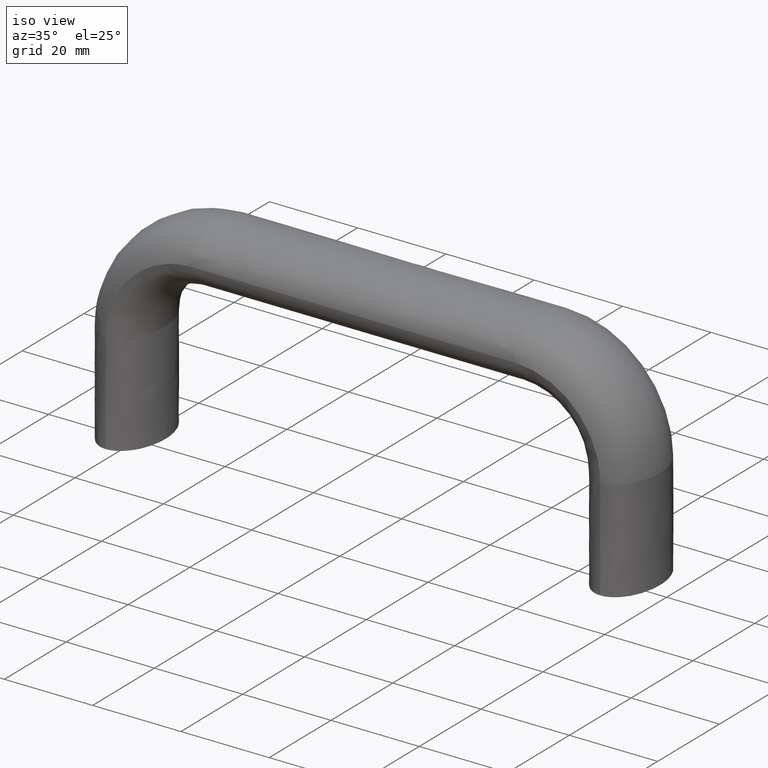
[diagram: clean part render]
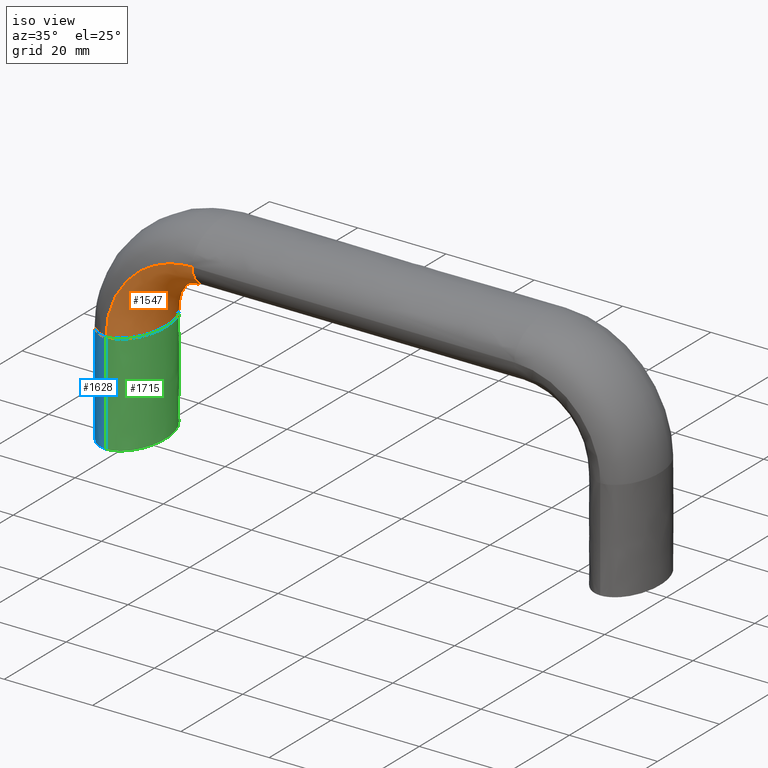
[diagram: same view with three faces highlighted in distinct colors, each labeled with its STEP entity id]
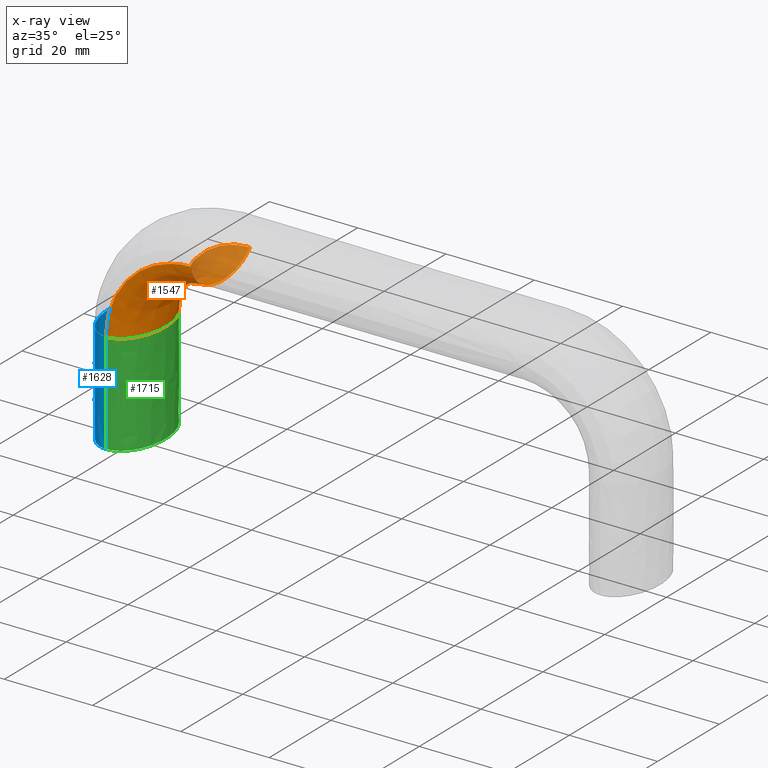
[diagram: x-ray of the same camera — body ghosted, the three highlighted faces saturated]
A machine part, iso view with three faces highlighted in distinct colors.
The next image is the same camera in x-ray (body ghosted, the three faces saturated) — at least one of them is partly hidden behind the body in this view.
Their STEP definitions:

[orange] entity #1547 — the highlighted face is a freeform B-spline surface patch.
#1017=CARTESIAN_POINT('',(19.500000000000000,-10.0,42.499999999999979));
#1018=VERTEX_POINT('',#1017);
#1225=CARTESIAN_POINT('',(19.500000000000000,8.755444309245862,39.370782612531798));
#1226=VERTEX_POINT('',#1225);
#1227=CARTESIAN_POINT('',(19.500000000000000,-10.0,42.499999999999979));
#1228=CARTESIAN_POINT('',(19.500000000000000,-10.0,40.798303979305501));
#1229=CARTESIAN_POINT('',(19.500000000000000,-8.922269036098131,39.107086718038651));
#1230=CARTESIAN_POINT('',(19.500000000000000,-5.219866587632820,36.700525126536199));
#1231=CARTESIAN_POINT('',(19.500000000000000,-2.617993877991495,36.0));
#1232=CARTESIAN_POINT('',(19.500000000000000,2.617993877991495,36.0));
#1233=CARTESIAN_POINT('',(19.500000000000000,5.219866587632830,36.700525126536199));
#1234=CARTESIAN_POINT('',(19.500000000000000,7.737500252403889,38.336987008637387));
#1235=CARTESIAN_POINT('',(19.500000000000000,8.303690947259186,38.833404660883012));
#1236=CARTESIAN_POINT('',(19.500000000000000,8.755444309245862,39.370782612531798));
#1237=B_SPLINE_CURVE_WITH_KNOTS('',3,(#1227,#1228,#1229,#1230,#1231,#1232,#1233,#1234,#1235,#1236),.UNSPECIFIED.,.F.,.U.,(4,2,2,2,4),(0.0,0.125000000000000,0.250000000000000,0.375000000000000,0.419999999987485),.UNSPECIFIED.);
#1238=EDGE_CURVE('',#1018,#1226,#1237,.T.);
#1382=CARTESIAN_POINT('',(3.129217387468214,8.755444309245853,23.0));
#1383=VERTEX_POINT('',#1382);
#1384=CARTESIAN_POINT('',(3.129217387468214,8.755444309245853,23.0));
#1385=CARTESIAN_POINT('',(3.129242525255062,8.755444309434322,25.143280771251970));
#1386=CARTESIAN_POINT('',(3.555305081972804,8.755444309434322,27.285017816731859));
#1387=CARTESIAN_POINT('',(5.195432943793461,8.755444309434322,31.244636744772549));
#1388=CARTESIAN_POINT('',(6.408828038957379,8.755444309434322,33.060610836574767));
#1389=CARTESIAN_POINT('',(9.439389163421531,8.755444309434322,36.091171961046413));
#1390=CARTESIAN_POINT('',(11.255363255153490,8.755444309434322,37.304567056172033));
#1391=CARTESIAN_POINT('',(15.214982183342190,8.755444309434322,38.944694918061742));
#1392=CARTESIAN_POINT('',(17.356769276508309,8.755444309434322,39.361454487743153));
#1393=CARTESIAN_POINT('',(19.500000000000000,8.755444309245862,39.370782612531798));
#1394=B_SPLINE_CURVE_WITH_KNOTS('',3,(#1384,#1385,#1386,#1387,#1388,#1389,#1390,#1391,#1392,#1393),.UNSPECIFIED.,.F.,.U.,(4,2,2,2,4),(0.127592723143674,0.170073511473857,0.212554299804041,0.255035088134224,0.297515876464408),.UNSPECIFIED.);
#1395=EDGE_CURVE('',#1383,#1226,#1394,.T.);
#1415=CARTESIAN_POINT('',(3.747003E-014,-10.0,23.0));
#1416=VERTEX_POINT('',#1415);
#1430=CARTESIAN_POINT('',(4.996004E-014,-10.0,23.0));
#1431=CARTESIAN_POINT('',(0.000032792768265,-10.0,25.552961332614402));
#1432=CARTESIAN_POINT('',(0.507532855560604,-10.0,28.104083867142329));
#1433=CARTESIAN_POINT('',(2.461165376499310,-10.0,32.820569995096172));
#1434=CARTESIAN_POINT('',(3.906496666724078,-10.0,34.983661132997149));
#1435=CARTESIAN_POINT('',(7.516338867000686,-10.0,38.593503333278200));
#1436=CARTESIAN_POINT('',(9.679430004815311,-10.0,40.038834623460851));
#1437=CARTESIAN_POINT('',(14.395916132946260,-10.0,41.992467144479278));
#1438=CARTESIAN_POINT('',(16.947090050488779,-10.0,42.489775046357877));
#1439=CARTESIAN_POINT('',(19.500000000000000,-10.0,42.499999999999979));
#1440=B_SPLINE_CURVE_WITH_KNOTS('',3,(#1430,#1431,#1432,#1433,#1434,#1435,#1436,#1437,#1438,#1439),.UNSPECIFIED.,.F.,.U.,(4,2,2,2,4),(0.127592723143674,0.170073511473857,0.212554299804041,0.255035088134224,0.297515876464408),.UNSPECIFIED.);
#1441=EDGE_CURVE('',#1416,#1018,#1440,.T.);
#1448=CARTESIAN_POINT('',(-0.085767458066482,-10.0,22.846146436781169));
#1449=CARTESIAN_POINT('',(1.644731576899136,-10.035978100608780,22.859740156215139));
#1450=CARTESIAN_POINT('',(3.372696696529138,-8.953369468538668,22.873313970905450));
#1451=CARTESIAN_POINT('',(5.799473734689905,-5.219866585898124,22.892377215702819));
#1452=CARTESIAN_POINT('',(6.499998952613396,-2.617993877991495,22.897880104348449));
#1453=CARTESIAN_POINT('',(6.499998952613396,2.617993877991495,22.897880104348449));
#1454=CARTESIAN_POINT('',(5.799473729399682,5.219866572629823,22.892377215661060));
#1455=CARTESIAN_POINT('',(4.142797042943582,7.768601939177565,22.879363398269909));
#1456=CARTESIAN_POINT('',(3.620111492175262,8.356282155902514,22.875257507035130));
#1457=CARTESIAN_POINT('',(3.053982956907215,8.818689778491706,22.870810354861039));
#1458=CARTESIAN_POINT('',(-0.105954779514816,-10.0,25.461376005107539));
#1459=CARTESIAN_POINT('',(1.626326518673161,-10.035978100608780,25.243901322379092));
#1460=CARTESIAN_POINT('',(3.356071495474875,-8.953369468538668,25.026745079206350));
#1461=CARTESIAN_POINT('',(5.785348468093504,-5.219866585898125,24.721767980498480));
#1462=CARTESIAN_POINT('',(6.486595398601395,-2.617993877991495,24.633731812918459));
#1463=CARTESIAN_POINT('',(6.486595398601722,2.617993877991495,24.633731812918700));
#1464=CARTESIAN_POINT('',(5.785348462797709,5.219866572629822,24.721767981163520));
#1465=CARTESIAN_POINT('',(4.126965157616244,7.768601939177566,24.929965290346459));
#1466=CARTESIAN_POINT('',(3.603741191802896,8.356282155902516,24.995652050902660));
#1467=CARTESIAN_POINT('',(3.037029516303612,8.818689778491706,25.066798363193811));
#1468=CARTESIAN_POINT('',(0.904842531692865,-10.0,30.646542181285810));
#1469=CARTESIAN_POINT('',(2.547816705026854,-10.035978100608769,29.970932545850790));
#1470=CARTESIAN_POINT('',(4.188385062576986,-8.953369468538670,29.296312179467328));
#1471=CARTESIAN_POINT('',(6.492420850840479,-5.219866585898124,28.348866419334829));
#1472=CARTESIAN_POINT('',(7.157514964306692,-2.617993877991495,28.075372134036488));
#1473=CARTESIAN_POINT('',(7.157514964307143,2.617993877991495,28.075372134035330));
#1474=CARTESIAN_POINT('',(6.492420845818419,5.219866572629825,28.348866421404288));
#1475=CARTESIAN_POINT('',(4.919535362251881,7.768601939177565,28.995654848113642));
#1476=CARTESIAN_POINT('',(4.423286133046512,8.356282155902514,29.199718179672860));
#1477=CARTESIAN_POINT('',(3.885791165486888,8.818689778491706,29.420742224648532));
#1478=CARTESIAN_POINT('',(5.290330071194718,-9.999999999999998,37.209801886632839));
#1479=CARTESIAN_POINT('',(6.545824245939173,-10.035978100608769,35.954295955037807));
#1480=CARTESIAN_POINT('',(7.799480063646673,-8.953369468538670,34.700628412051898));
#1481=CARTESIAN_POINT('',(9.560130885591827,-5.219866585898124,32.939961142682620));
#1482=CARTESIAN_POINT('',(10.068368890509101,-2.617993877991495,32.431718394865953));
#1483=CARTESIAN_POINT('',(10.068368890509481,2.617993877991495,32.431718394861427));
#1484=CARTESIAN_POINT('',(9.560130881752652,5.219866572629824,32.939961146520233));
#1485=CARTESIAN_POINT('',(8.358195506627498,7.768601939177565,34.141907749732702));
#1486=CARTESIAN_POINT('',(7.978981956138554,8.356282155902514,34.521124844638983));
#1487=CARTESIAN_POINT('',(7.568250092492939,8.818689778491706,34.931860549069590));
#1488=CARTESIAN_POINT('',(9.636379484682896,-10.0,40.113917930320703));
#1489=CARTESIAN_POINT('',(10.507878902039000,-10.035978100608780,38.601819053263391));
#1490=CARTESIAN_POINT('',(11.378102216604651,-8.953369468538668,37.091934283936290));
#1491=CARTESIAN_POINT('',(12.600255342895350,-5.219866585898124,34.971432155015883));
#1492=CARTESIAN_POINT('',(12.953047988025959,-2.617993877991495,34.359317732541733));
#1493=CARTESIAN_POINT('',(12.953047988024970,2.617993877991495,34.359317732553293));
#1494=CARTESIAN_POINT('',(12.600255340233129,5.219866572629823,34.971432159635327));
#1495=CARTESIAN_POINT('',(11.765933703030090,7.768601939177565,36.419025566580807));
#1496=CARTESIAN_POINT('',(11.502703184608050,8.356282155902514,36.875744829251147));
#1497=CARTESIAN_POINT('',(11.217594275056110,8.818689778491706,37.370424290173190));
#1498=CARTESIAN_POINT('',(14.420927074209869,-10.0,42.095658293410473));
#1499=CARTESIAN_POINT('',(14.869688164387229,-10.035978100608780,40.408462901511577));
#1500=CARTESIAN_POINT('',(15.317792151113739,-8.953369468538666,38.723738004421833));
#1501=CARTESIAN_POINT('',(15.947115313468080,-5.219866585898124,36.357688088998373));
#1502=CARTESIAN_POINT('',(16.128778787799909,-2.617993877991495,35.674692652349243));
#1503=CARTESIAN_POINT('',(16.128778787799920,2.617993877991495,35.674692652340191));
#1504=CARTESIAN_POINT('',(15.947115312093951,5.219866572629824,36.357688094156238));
#1505=CARTESIAN_POINT('',(15.517498171777859,7.768601939177565,37.972908475854027));
#1506=CARTESIAN_POINT('',(15.381952912581330,8.356282155902514,38.482514459312512));
#1507=CARTESIAN_POINT('',(15.235141816071341,8.818689778491706,39.034476318134999));
#1508=CARTESIAN_POINT('',(17.038627746386322,-9.999999999999998,42.595330899720388));
#1509=CARTESIAN_POINT('',(17.256106282583289,-10.035978100608769,40.863519607040850));
#1510=CARTESIAN_POINT('',(17.473266005892860,-8.953369468538668,39.134312813981417));
#1511=CARTESIAN_POINT('',(17.778247405175701,-5.219866585898126,36.705886196137037));
#1512=CARTESIAN_POINT('',(17.866284654070050,-2.617993877991495,36.004908196731328));
#1513=CARTESIAN_POINT('',(17.866284654070100,2.617993877991495,36.004908196731691));
#1514=CARTESIAN_POINT('',(17.778247404512769,5.219866572629823,36.705886201424264));
#1515=CARTESIAN_POINT('',(17.570047159476481,7.768601939177565,38.363688998742781));
#1516=CARTESIAN_POINT('',(17.504359415240231,8.356282155902512,38.886739058036440));
#1517=CARTESIAN_POINT('',(17.433211987729852,8.818689778491706,39.453270878515092));
#1518=CARTESIAN_POINT('',(19.654137345635899,-10.0,42.586381492860518));
#1519=CARTESIAN_POINT('',(19.640518310825222,-10.035978100608780,40.855855294610308));
#1520=CARTESIAN_POINT('',(19.626919239072109,-8.953369468538668,39.127859070874230));
#1521=CARTESIAN_POINT('',(19.607820556837741,-5.219866585898124,36.701032886142087));
#1522=CARTESIAN_POINT('',(19.602307447900959,-2.617993877991495,36.000492125097402));
#1523=CARTESIAN_POINT('',(19.602307447900959,2.617993877991495,36.000492125097402));
#1524=CARTESIAN_POINT('',(19.607820556879268,5.219866572629823,36.701032891432803));
#1525=CARTESIAN_POINT('',(19.620858566182189,7.768601939177565,38.357743128557352));
#1526=CARTESIAN_POINT('',(19.624972093341562,8.356282155902514,38.880438730259598));
#1527=CARTESIAN_POINT('',(19.629427518976119,8.818689778491706,39.446577660198983));
#1528=B_SPLINE_SURFACE_WITH_KNOTS('',3,3,((#1448,#1458,#1468,#1478,#1488,#1498,#1508,#1518),(#1449,#1459,#1469,#1479,#1489,#1499,#1509,#1519),(#1450,#1460,#1470,#1480,#1490,#1500,#1510,#1520),(#1451,#1461,#1471,#1481,#1491,#1501,#1511,#1521),(#1452,#1462,#1472,#1482,#1492,#1502,#1512,#1522),(#1453,#1463,#1473,#1483,#1493,#1503,#1513,#1523),(#1454,#1464,#1474,#1484,#1494,#1504,#1514,#1524),(#1455,#1465,#1475,#1485,#1495,#1505,#1515,#1525),(#1456,#1466,#1476,#1486,#1496,#1506,#1516,#1526),(#1457,#1467,#1477,#1487,#1497,#1507,#1517,#1527)),.UNSPECIFIED.,.F.,.F.,.U.,(4,2,2,2,4),(4,1,1,2,4),(0.0,7.822887241800312,15.516521432094621,23.210155622388921,26.109116982015721),(0.0,7.846287862636352,15.538724813632680,23.231161764629011,31.077736495098911),.UNSPECIFIED.);
#1529=ORIENTED_EDGE('',*,*,#1238,.F.);
#1530=ORIENTED_EDGE('',*,*,#1441,.F.);
#1531=CARTESIAN_POINT('',(0.0,-10.0,23.0));
#1532=CARTESIAN_POINT('',(1.701696020694470,-10.0,23.0));
#1533=CARTESIAN_POINT('',(3.392913281961335,-8.922269036098131,23.0));
#1534=CARTESIAN_POINT('',(5.799474873463780,-5.219866587632820,23.0));
#1535=CARTESIAN_POINT('',(6.500000000000000,-2.617993877991495,23.0));
#1536=CARTESIAN_POINT('',(6.500000000000000,2.617993877991495,23.0));
#1537=CARTESIAN_POINT('',(5.799474873463780,5.219866587632830,23.0));
#1538=CARTESIAN_POINT('',(4.163012991362596,7.737500252403877,23.0));
#1539=CARTESIAN_POINT('',(3.666595339116987,8.303690947259167,23.0));
#1540=CARTESIAN_POINT('',(3.129217387468214,8.755444309245853,23.0));
#1541=B_SPLINE_CURVE_WITH_KNOTS('',3,(#1531,#1532,#1533,#1534,#1535,#1536,#1537,#1538,#1539,#1540),.UNSPECIFIED.,.F.,.U.,(4,2,2,2,4),(0.0,0.125000000000000,0.250000000000000,0.375000000000000,0.419999999987484),.UNSPECIFIED.);
#1542=EDGE_CURVE('',#1416,#1383,#1541,.T.);
#1543=ORIENTED_EDGE('',*,*,#1542,.T.);
#1544=ORIENTED_EDGE('',*,*,#1395,.T.);
#1545=EDGE_LOOP('',(#1529,#1530,#1543,#1544));
#1546=FACE_OUTER_BOUND('',#1545,.T.);
#1547=ADVANCED_FACE('',(#1546),#1528,.T.);

[blue] entity #1628 — the highlighted face is a freeform B-spline surface patch.
#1406=CARTESIAN_POINT('',(-2.765141685486812,9.039503756805880,23.0));
#1407=VERTEX_POINT('',#1406);
#1415=CARTESIAN_POINT('',(3.747003E-014,-10.0,23.0));
#1416=VERTEX_POINT('',#1415);
#1417=CARTESIAN_POINT('',(-2.765141685486812,9.039503756805880,23.0));
#1418=CARTESIAN_POINT('',(-3.442842477852798,8.550381046656829,23.0));
#1419=CARTESIAN_POINT('',(-4.066750527635118,7.885596350446154,23.0));
#1420=CARTESIAN_POINT('',(-5.799474873463780,5.219866587632820,23.0));
#1421=CARTESIAN_POINT('',(-6.500000000000000,2.617993877991495,23.0));
#1422=CARTESIAN_POINT('',(-6.500000000000000,-2.617993877991495,23.0));
#1423=CARTESIAN_POINT('',(-5.799474873463780,-5.219866587632820,23.0));
#1424=CARTESIAN_POINT('',(-3.392913281961335,-8.922269036098131,23.0));
#1425=CARTESIAN_POINT('',(-1.701696020694470,-10.0,23.0));
#1426=CARTESIAN_POINT('',(0.0,-10.0,23.0));
#1427=B_SPLINE_CURVE_WITH_KNOTS('',3,(#1417,#1418,#1419,#1420,#1421,#1422,#1423,#1424,#1425,#1426),.UNSPECIFIED.,.F.,.U.,(4,2,2,2,4),(0.570000000005516,0.625000000000000,0.750000000000000,0.875000000000000,1.0),.UNSPECIFIED.);
#1428=EDGE_CURVE('',#1407,#1416,#1427,.T.);
#1548=CARTESIAN_POINT('',(-2.765141685384861,9.039503756879462,0.0));
#1549=CARTESIAN_POINT('',(-3.442842477727653,8.550381046790173,0.0));
#1550=CARTESIAN_POINT('',(-4.066750527582020,7.885596350527845,0.0));
#1551=CARTESIAN_POINT('',(-5.799474873463780,5.219866587632820,0.0));
#1552=CARTESIAN_POINT('',(-6.500000000000000,2.617993877991495,0.0));
#1553=CARTESIAN_POINT('',(-6.500000000000000,-2.617993877991495,0.0));
#1554=CARTESIAN_POINT('',(-5.799474873463780,-5.219866587632820,0.0));
#1555=CARTESIAN_POINT('',(-3.392913281961335,-8.922269036098131,0.0));
#1556=CARTESIAN_POINT('',(-1.701696020694470,-10.0,0.0));
#1557=CARTESIAN_POINT('',(0.0,-10.0,0.0));
#1558=CARTESIAN_POINT('',(-2.765141685384861,9.039503756879462,7.666666664201729));
#1559=CARTESIAN_POINT('',(-3.442842477727653,8.550381046790173,7.666666664131049));
#1560=CARTESIAN_POINT('',(-4.066750527582020,7.885596350527845,7.666666664067749));
#1561=CARTESIAN_POINT('',(-5.799474873463780,5.219866587632820,7.666666663897059));
#1562=CARTESIAN_POINT('',(-6.500000000000000,2.617993877991495,7.666666663830930));
#1563=CARTESIAN_POINT('',(-6.500000000000000,-2.617993877991495,7.666666663830930));
#1564=CARTESIAN_POINT('',(-5.799474873463780,-5.219866587632820,7.666666663897059));
#1565=CARTESIAN_POINT('',(-3.392913281961335,-8.922269036098131,7.666666664134129));
#1566=CARTESIAN_POINT('',(-1.701696020694470,-10.0,7.666666664310230));
#1567=CARTESIAN_POINT('',(0.0,-10.0,7.666666664499700));
#1568=CARTESIAN_POINT('',(-2.765246361233751,9.039503756879462,15.333333336615331));
#1569=CARTESIAN_POINT('',(-3.442948669418732,8.550381046790173,15.333333336709449));
#1570=CARTESIAN_POINT('',(-4.066858045110570,7.885596350527845,15.333333336793730));
#1571=CARTESIAN_POINT('',(-5.799585888339260,5.219866587632820,15.333333337020999));
#1572=CARTESIAN_POINT('',(-6.500112332267170,2.617993877991495,15.333333337109050));
#1573=CARTESIAN_POINT('',(-6.500112332267170,-2.617993877991495,15.333333337109050));
#1574=CARTESIAN_POINT('',(-5.799585888339260,-5.219866587632820,15.333333337020999));
#1575=CARTESIAN_POINT('',(-3.393019439410525,-8.922269036098131,15.333333336705349));
#1576=CARTESIAN_POINT('',(-1.701798420899075,-10.0,15.333333336470851));
#1577=CARTESIAN_POINT('',(-0.000098103297000,-10.0,15.333333336218599));
#1578=CARTESIAN_POINT('',(-2.765141685384861,9.039503756879462,23.0));
#1579=CARTESIAN_POINT('',(-3.442842477727653,8.550381046790173,23.0));
#1580=CARTESIAN_POINT('',(-4.066750527582020,7.885596350527845,23.0));
#1581=CARTESIAN_POINT('',(-5.799474873463780,5.219866587632820,23.0));
#1582=CARTESIAN_POINT('',(-6.500000000000000,2.617993877991495,23.0));
#1583=CARTESIAN_POINT('',(-6.500000000000000,-2.617993877991495,23.0));
#1584=CARTESIAN_POINT('',(-5.799474873463780,-5.219866587632820,23.0));
#1585=CARTESIAN_POINT('',(-3.392913281961335,-8.922269036098131,23.0));
#1586=CARTESIAN_POINT('',(-1.701696020694470,-10.0,23.0));
#1587=CARTESIAN_POINT('',(0.0,-10.0,23.0));
#1588=B_SPLINE_SURFACE_WITH_KNOTS('',3,3,((#1548,#1558,#1568,#1578),(#1549,#1559,#1569,#1579),(#1550,#1560,#1570,#1580),(#1551,#1561,#1571,#1581),(#1552,#1562,#1572,#1582),(#1553,#1563,#1573,#1583),(#1554,#1564,#1574,#1584),(#1555,#1565,#1575,#1585),(#1556,#1566,#1576,#1586),(#1557,#1567,#1577,#1587)),.UNSPECIFIED.,.F.,.F.,.U.,(4,2,2,2,4),(4,4),(0.0,3.385193616031287,11.078815470647839,18.772437325264399,26.466059179880951),(0.0,23.000000004019260),.UNSPECIFIED.);
#1589=ORIENTED_EDGE('',*,*,#1428,.F.);
#1590=CARTESIAN_POINT('',(-2.767718893498333,9.043070626158954,-4.440892E-016));
#1591=VERTEX_POINT('',#1590);
#1592=CARTESIAN_POINT('',(-2.767718893498333,9.043070626158954,-4.440892E-016));
#1593=CARTESIAN_POINT('',(-2.766859824161435,9.041881669708312,7.666666664201729));
#1594=CARTESIAN_POINT('',(-2.766105430672508,9.040692713256396,15.333333336615331));
#1595=CARTESIAN_POINT('',(-2.765141685486812,9.039503756805880,23.0));
#1596=B_SPLINE_CURVE_WITH_KNOTS('',3,(#1592,#1593,#1594,#1595),.UNSPECIFIED.,.F.,.U.,(4,4),(0.0,0.127592723143674),.UNSPECIFIED.);
#1597=EDGE_CURVE('',#1591,#1407,#1596,.T.);
#1598=ORIENTED_EDGE('',*,*,#1597,.F.);
#1599=CARTESIAN_POINT('',(3.252607E-016,-10.0,0.0));
#1600=VERTEX_POINT('',#1599);
#1601=CARTESIAN_POINT('',(-2.767718893498333,9.043070626158954,-4.440892E-016));
#1602=CARTESIAN_POINT('',(-3.789574658902800,8.304902883912446,-4.306256E-016));
#1603=CARTESIAN_POINT('',(-4.593843456445189,7.067814539892179,-4.050451E-016));
#1604=CARTESIAN_POINT('',(-5.508528250209203,5.660889516472497,-3.759528E-016));
#1605=CARTESIAN_POINT('',(-6.003269068346621,3.824138429711629,-3.356494E-016));
#1606=CARTESIAN_POINT('',(-6.498383111718313,1.986001724805764,-2.953156E-016));
#1607=CARTESIAN_POINT('',(-6.498549654176818,-0.002007286109277,-2.499150E-016));
#1608=CARTESIAN_POINT('',(-6.498716322272501,-1.991516021929499,-2.044802E-016));
#1609=CARTESIAN_POINT('',(-6.004283234472825,-3.828126606434067,-1.608943E-016));
#1610=CARTESIAN_POINT('',(-5.509477153587773,-5.666122703084662,-1.172755E-016));
#1611=CARTESIAN_POINT('',(-4.595717391098320,-7.071727548601308,-8.213981E-017));
#1612=CARTESIAN_POINT('',(-3.681268301609664,-8.478392761853591,-4.697762E-017));
#1613=CARTESIAN_POINT('',(-2.487293505025912,-9.239001272481852,-2.564125E-017));
#1614=CARTESIAN_POINT('',(-1.292964223232616,-9.999835604013509,-4.298551E-018));
#1615=CARTESIAN_POINT('',(3.252607E-016,-10.0,0.0));
#1616=B_SPLINE_CURVE_WITH_KNOTS('',2,(#1601,#1602,#1603,#1604,#1605,#1606,#1607,#1608,#1609,#1610,#1611,#1612,#1613,#1614,#1615),.UNSPECIFIED.,.F.,.U.,(3,2,2,2,2,2,2,3),(0.140006435598913,0.250000000000000,0.375000000000000,0.500000000000000,0.625000000000000,0.750000000000000,0.875000000000000,1.0),.UNSPECIFIED.);
#1617=EDGE_CURVE('',#1591,#1600,#1616,.T.);
#1618=ORIENTED_EDGE('',*,*,#1617,.T.);
#1619=CARTESIAN_POINT('',(0.0,-10.0,0.0));
#1620=CARTESIAN_POINT('',(0.0,-10.0,7.666666664499700));
#1621=CARTESIAN_POINT('',(-0.000098103297000,-10.0,15.333333336218599));
#1622=CARTESIAN_POINT('',(0.0,-10.0,23.0));
#1623=B_SPLINE_CURVE_WITH_KNOTS('',3,(#1619,#1620,#1621,#1622),.UNSPECIFIED.,.F.,.U.,(4,4),(0.0,0.127592723143674),.UNSPECIFIED.);
#1624=EDGE_CURVE('',#1600,#1416,#1623,.T.);
#1625=ORIENTED_EDGE('',*,*,#1624,.T.);
#1626=EDGE_LOOP('',(#1589,#1598,#1618,#1625));
#1627=FACE_OUTER_BOUND('',#1626,.T.);
#1628=ADVANCED_FACE('',(#1627),#1588,.T.);

[green] entity #1715 — the highlighted face is a freeform B-spline surface patch.
#1382=CARTESIAN_POINT('',(3.129217387468214,8.755444309245853,23.0));
#1383=VERTEX_POINT('',#1382);
#1397=CARTESIAN_POINT('',(0.0,10.0,23.0));
#1398=VERTEX_POINT('',#1397);
#1399=CARTESIAN_POINT('',(3.129217387468214,8.755444309245853,23.0));
#1400=CARTESIAN_POINT('',(2.173878806966802,9.558561397047669,23.0));
#1401=CARTESIAN_POINT('',(1.089085453414847,10.0,23.0));
#1402=CARTESIAN_POINT('',(0.0,10.0,23.0));
#1403=B_SPLINE_CURVE_WITH_KNOTS('',3,(#1399,#1400,#1401,#1402),.UNSPECIFIED.,.F.,.U.,(4,4),(0.419999999987484,0.500000000000000),.UNSPECIFIED.);
#1404=EDGE_CURVE('',#1383,#1398,#1403,.T.);
#1406=CARTESIAN_POINT('',(-2.765141685486812,9.039503756805880,23.0));
#1407=VERTEX_POINT('',#1406);
#1408=CARTESIAN_POINT('',(0.0,10.0,23.0));
#1409=CARTESIAN_POINT('',(-0.952949771664006,10.0,23.0));
#1410=CARTESIAN_POINT('',(-1.902613404370997,9.662023569667102,23.0));
#1411=CARTESIAN_POINT('',(-2.765141685486812,9.039503756805880,23.0));
#1412=B_SPLINE_CURVE_WITH_KNOTS('',3,(#1408,#1409,#1410,#1411),.UNSPECIFIED.,.F.,.U.,(4,4),(0.500000000000000,0.570000000005517),.UNSPECIFIED.);
#1413=EDGE_CURVE('',#1398,#1407,#1412,.T.);
#1415=CARTESIAN_POINT('',(3.747003E-014,-10.0,23.0));
#1416=VERTEX_POINT('',#1415);
#1531=CARTESIAN_POINT('',(0.0,-10.0,23.0));
#1532=CARTESIAN_POINT('',(1.701696020694470,-10.0,23.0));
#1533=CARTESIAN_POINT('',(3.392913281961335,-8.922269036098131,23.0));
#1534=CARTESIAN_POINT('',(5.799474873463780,-5.219866587632820,23.0));
#1535=CARTESIAN_POINT('',(6.500000000000000,-2.617993877991495,23.0));
#1536=CARTESIAN_POINT('',(6.500000000000000,2.617993877991495,23.0));
#1537=CARTESIAN_POINT('',(5.799474873463780,5.219866587632830,23.0));
#1538=CARTESIAN_POINT('',(4.163012991362596,7.737500252403877,23.0));
#1539=CARTESIAN_POINT('',(3.666595339116987,8.303690947259167,23.0));
#1540=CARTESIAN_POINT('',(3.129217387468214,8.755444309245853,23.0));
#1541=B_SPLINE_CURVE_WITH_KNOTS('',3,(#1531,#1532,#1533,#1534,#1535,#1536,#1537,#1538,#1539,#1540),.UNSPECIFIED.,.F.,.U.,(4,2,2,2,4),(0.0,0.125000000000000,0.250000000000000,0.375000000000000,0.419999999987484),.UNSPECIFIED.);
#1542=EDGE_CURVE('',#1416,#1383,#1541,.T.);
#1590=CARTESIAN_POINT('',(-2.767718893498333,9.043070626158954,-4.440892E-016));
#1591=VERTEX_POINT('',#1590);
#1592=CARTESIAN_POINT('',(-2.767718893498333,9.043070626158954,-4.440892E-016));
#1593=CARTESIAN_POINT('',(-2.766859824161435,9.041881669708312,7.666666664201729));
#1594=CARTESIAN_POINT('',(-2.766105430672508,9.040692713256396,15.333333336615331));
#1595=CARTESIAN_POINT('',(-2.765141685486812,9.039503756805880,23.0));
#1596=B_SPLINE_CURVE_WITH_KNOTS('',3,(#1592,#1593,#1594,#1595),.UNSPECIFIED.,.F.,.U.,(4,4),(0.0,0.127592723143674),.UNSPECIFIED.);
#1597=EDGE_CURVE('',#1591,#1407,#1596,.T.);
#1599=CARTESIAN_POINT('',(3.252607E-016,-10.0,0.0));
#1600=VERTEX_POINT('',#1599);
#1619=CARTESIAN_POINT('',(0.0,-10.0,0.0));
#1620=CARTESIAN_POINT('',(0.0,-10.0,7.666666664499700));
#1621=CARTESIAN_POINT('',(-0.000098103297000,-10.0,15.333333336218599));
#1622=CARTESIAN_POINT('',(0.0,-10.0,23.0));
#1623=B_SPLINE_CURVE_WITH_KNOTS('',3,(#1619,#1620,#1621,#1622),.UNSPECIFIED.,.F.,.U.,(4,4),(0.0,0.127592723143674),.UNSPECIFIED.);
#1624=EDGE_CURVE('',#1600,#1416,#1623,.T.);
#1629=CARTESIAN_POINT('',(0.0,-10.0,0.0));
#1630=CARTESIAN_POINT('',(1.701696020694470,-10.0,0.0));
#1631=CARTESIAN_POINT('',(3.392913281961335,-8.922269036098131,0.0));
#1632=CARTESIAN_POINT('',(5.799474873463780,-5.219866587632820,0.0));
#1633=CARTESIAN_POINT('',(6.500000000000000,-2.617993877991495,0.0));
#1634=CARTESIAN_POINT('',(6.500000000000000,2.617993877991495,0.0));
#1635=CARTESIAN_POINT('',(5.799474873463780,5.219866587632830,0.0));
#1636=CARTESIAN_POINT('',(3.392913281961330,8.922269036098131,0.0));
#1637=CARTESIAN_POINT('',(1.701696020694470,10.0,0.0));
#1638=CARTESIAN_POINT('',(-0.952949771588903,10.0,0.0));
#1639=CARTESIAN_POINT('',(-1.902613404221309,9.662023569720375,0.0));
#1640=CARTESIAN_POINT('',(-2.765141685384861,9.039503756879462,0.0));
#1641=CARTESIAN_POINT('',(0.0,-10.0,7.666666664499700));
#1642=CARTESIAN_POINT('',(1.701696020694470,-10.0,7.666666664689170));
#1643=CARTESIAN_POINT('',(3.392913281961335,-8.922269036098131,7.666666664889631));
#1644=CARTESIAN_POINT('',(5.799474873463780,-5.219866587632820,7.666666665187820));
#1645=CARTESIAN_POINT('',(6.500000000000000,-2.617993877991495,7.666666665277160));
#1646=CARTESIAN_POINT('',(6.500000000000000,2.617993877991495,7.666666665277160));
#1647=CARTESIAN_POINT('',(5.799474873463780,5.219866587632830,7.666666665187820));
#1648=CARTESIAN_POINT('',(3.392913281961330,8.922269036098131,7.666666664889631));
#1649=CARTESIAN_POINT('',(1.701696020694470,10.0,7.666666664689170));
#1650=CARTESIAN_POINT('',(-0.952949771588903,10.0,7.666666664393597));
#1651=CARTESIAN_POINT('',(-1.902613404221309,9.662023569720375,7.666666664291686));
#1652=CARTESIAN_POINT('',(-2.765141685384861,9.039503756879462,7.666666664201729));
#1653=CARTESIAN_POINT('',(-0.000098103297000,-10.0,15.333333336218599));
#1654=CARTESIAN_POINT('',(1.701602214305075,-10.0,15.333333335966350));
#1655=CARTESIAN_POINT('',(3.392824357029610,-8.922269036098131,15.333333335699450));
#1656=CARTESIAN_POINT('',(5.799393752064910,-5.219866587632820,15.333333335302401));
#1657=CARTESIAN_POINT('',(6.499921367291970,-2.617993877991495,15.333333335183450));
#1658=CARTESIAN_POINT('',(6.499921367291970,2.617993877991495,15.333333335183450));
#1659=CARTESIAN_POINT('',(5.799393752064900,5.219866587632830,15.333333335302401));
#1660=CARTESIAN_POINT('',(3.392824357029605,8.922269036098131,15.333333335699450));
#1661=CARTESIAN_POINT('',(1.701602214305070,10.0,15.333333335966350));
#1662=CARTESIAN_POINT('',(-0.953050281154162,10.0,15.333333336359861));
#1663=CARTESIAN_POINT('',(-1.902716150816503,9.662023569720375,15.333333336495549));
#1664=CARTESIAN_POINT('',(-2.765246361233751,9.039503756879462,15.333333336615331));
#1665=CARTESIAN_POINT('',(0.0,-10.0,23.0));
#1666=CARTESIAN_POINT('',(1.701696020694470,-10.0,23.0));
#1667=CARTESIAN_POINT('',(3.392913281961335,-8.922269036098131,23.0));
#1668=CARTESIAN_POINT('',(5.799474873463780,-5.219866587632820,23.0));
#1669=CARTESIAN_POINT('',(6.500000000000000,-2.617993877991495,23.0));
#1670=CARTESIAN_POINT('',(6.500000000000000,2.617993877991495,23.0));
#1671=CARTESIAN_POINT('',(5.799474873463780,5.219866587632830,23.0));
#1672=CARTESIAN_POINT('',(3.392913281961330,8.922269036098131,23.0));
#1673=CARTESIAN_POINT('',(1.701696020694470,10.0,23.0));
#1674=CARTESIAN_POINT('',(-0.952949771588903,10.0,23.0));
#1675=CARTESIAN_POINT('',(-1.902613404221309,9.662023569720375,23.0));
#1676=CARTESIAN_POINT('',(-2.765141685384861,9.039503756879462,23.0));
#1677=B_SPLINE_SURFACE_WITH_KNOTS('',3,3,((#1629,#1641,#1653,#1665),(#1630,#1642,#1654,#1666),(#1631,#1643,#1655,#1667),(#1632,#1644,#1656,#1668),(#1633,#1645,#1657,#1669),(#1634,#1646,#1658,#1670),(#1635,#1647,#1659,#1671),(#1636,#1648,#1660,#1672),(#1637,#1649,#1661,#1673),(#1638,#1650,#1662,#1674),(#1639,#1651,#1663,#1675),(#1640,#1652,#1664,#1676)),.UNSPECIFIED.,.F.,.F.,.U.,(4,2,2,2,2,4),(4,4),(0.0,7.693622012940232,15.387244025880459,23.080866038820702,30.774488051760930,35.082916379007450),(0.0,23.000000003520189),.UNSPECIFIED.);
#1678=ORIENTED_EDGE('',*,*,#1413,.F.);
#1679=ORIENTED_EDGE('',*,*,#1404,.F.);
#1680=ORIENTED_EDGE('',*,*,#1542,.F.);
#1681=ORIENTED_EDGE('',*,*,#1624,.F.);
#1682=CARTESIAN_POINT('',(-1.301043E-015,10.0,0.0));
#1683=VERTEX_POINT('',#1682);
#1684=CARTESIAN_POINT('',(5.827587E-016,-9.999999999999991,0.0));
#1685=CARTESIAN_POINT('',(1.293495947650843,-9.999801000622920,0.0));
#1686=CARTESIAN_POINT('',(2.487442310373089,-9.238795325112871,0.0));
#1687=CARTESIAN_POINT('',(3.682367494606962,-8.477165761672067,0.0));
#1688=CARTESIAN_POINT('',(4.596194077712559,-7.071067811865456,0.0));
#1689=CARTESIAN_POINT('',(5.510710038218062,-5.663909122344585,0.0));
#1690=CARTESIAN_POINT('',(6.005216961323355,-3.826834323650897,0.0));
#1691=CARTESIAN_POINT('',(6.500096933217217,-1.988373662603977,0.0));
#1692=CARTESIAN_POINT('',(6.500000000000003,-3.672735E-015,0.0));
#1693=CARTESIAN_POINT('',(6.499902993657782,1.989873662604707,0.0));
#1694=CARTESIAN_POINT('',(6.005216961323353,3.826834323650896,0.0));
#1695=CARTESIAN_POINT('',(5.510157745084252,5.665180760941928,0.0));
#1696=CARTESIAN_POINT('',(4.596194077712557,7.071067811865471,0.0));
#1697=CARTESIAN_POINT('',(3.681540929521299,8.478015443412405,0.0));
#1698=CARTESIAN_POINT('',(2.487442310373079,9.238795325112868,0.0));
#1699=CARTESIAN_POINT('',(1.292989169263922,9.999801078589059,0.0));
#1700=CARTESIAN_POINT('',(-1.409463E-015,9.999999999999996,0.0));
#1701=B_SPLINE_CURVE_WITH_KNOTS('',2,(#1684,#1685,#1686,#1687,#1688,#1689,#1690,#1691,#1692,#1693,#1694,#1695,#1696,#1697,#1698,#1699,#1700),.UNSPECIFIED.,.F.,.U.,(3,2,2,2,2,2,2,2,3),(0.0,0.125000000000000,0.250000000000000,0.375000000000000,0.500000000000000,0.625000000000000,0.750000000000000,0.875000000000000,1.0),.UNSPECIFIED.);
#1702=EDGE_CURVE('',#1600,#1683,#1701,.T.);
#1703=ORIENTED_EDGE('',*,*,#1702,.T.);
#1704=CARTESIAN_POINT('',(-1.301043E-015,10.0,0.0));
#1705=CARTESIAN_POINT('',(-1.292419972266707,9.998311845128663,-1.854057E-016));
#1706=CARTESIAN_POINT('',(-2.485155382816887,9.235630205564771,-3.940698E-016));
#1707=CARTESIAN_POINT('',(-2.628462429610895,9.143994078689408,-4.191408E-016));
#1708=CARTESIAN_POINT('',(-2.767718893498333,9.043070626158954,-4.440892E-016));
#1709=B_SPLINE_CURVE_WITH_KNOTS('',2,(#1704,#1705,#1706,#1707,#1708),.UNSPECIFIED.,.F.,.U.,(3,2,3),(0.0,0.125000000000000,0.140006435598913),.UNSPECIFIED.);
#1710=EDGE_CURVE('',#1683,#1591,#1709,.T.);
#1711=ORIENTED_EDGE('',*,*,#1710,.T.);
#1712=ORIENTED_EDGE('',*,*,#1597,.T.);
#1713=EDGE_LOOP('',(#1678,#1679,#1680,#1681,#1703,#1711,#1712));
#1714=FACE_OUTER_BOUND('',#1713,.T.);
#1715=ADVANCED_FACE('',(#1714),#1677,.T.);